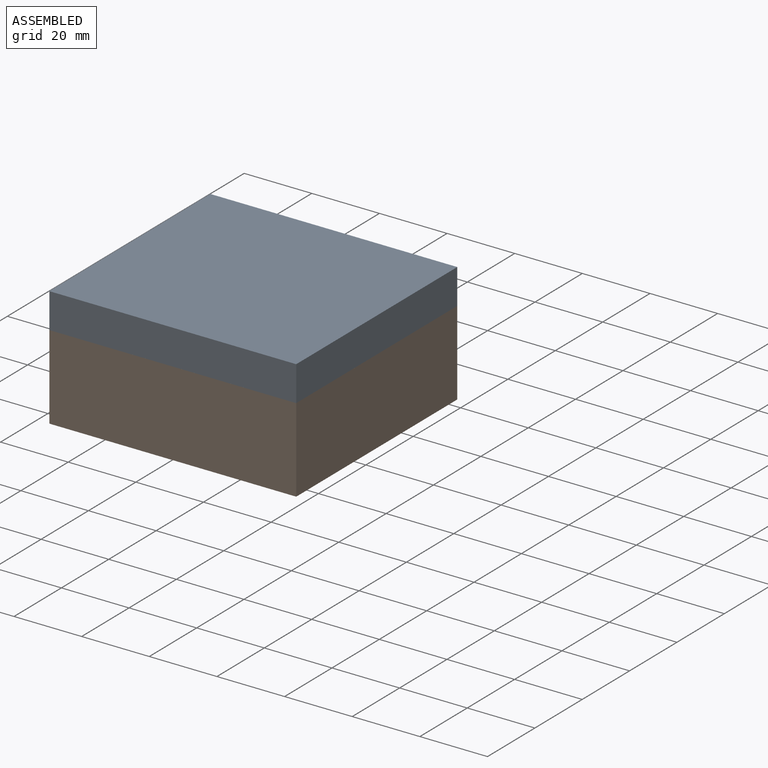
[diagram: assembled view]
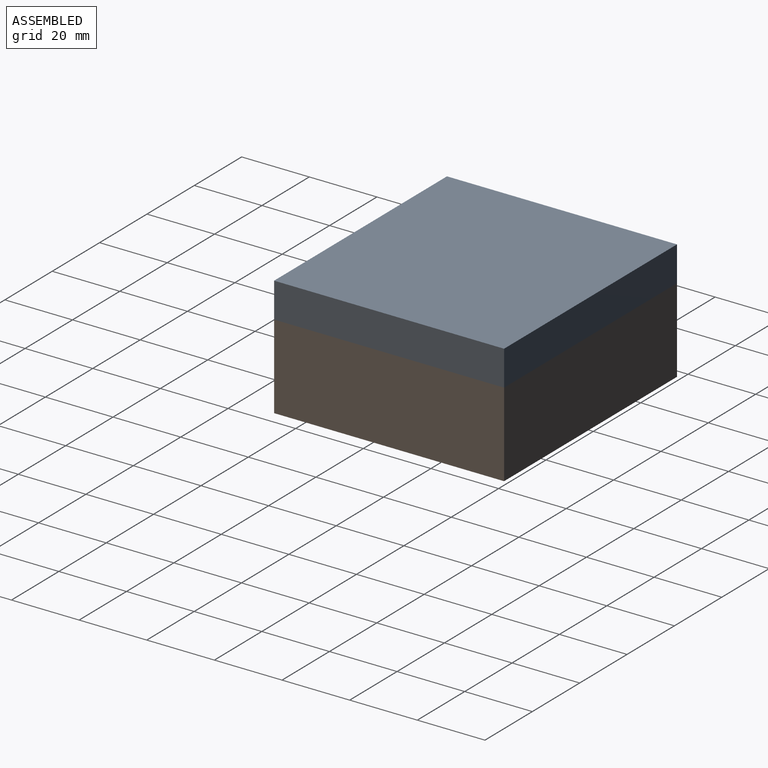
[diagram: assembled view, second angle]
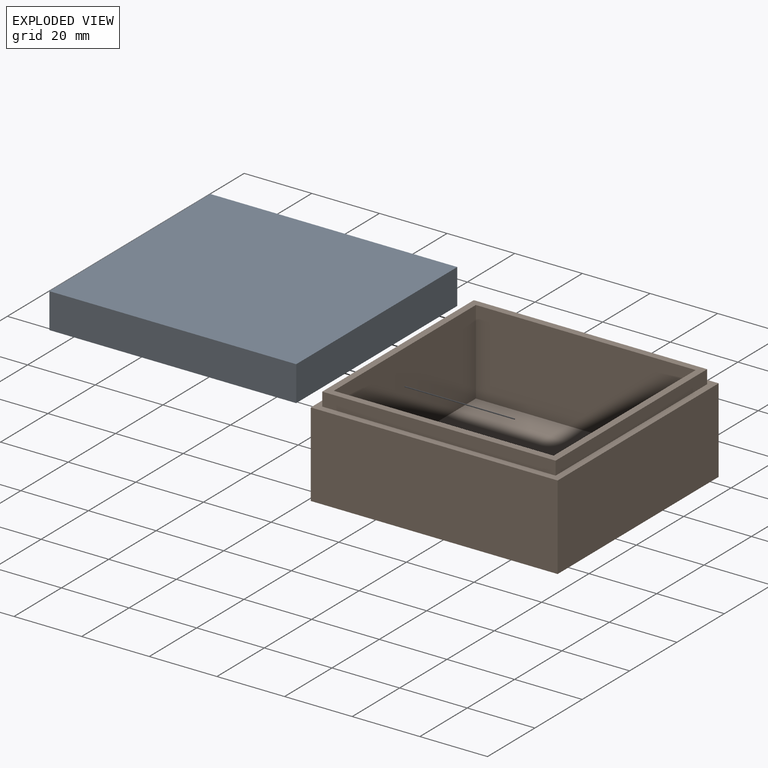
[diagram: exploded view]
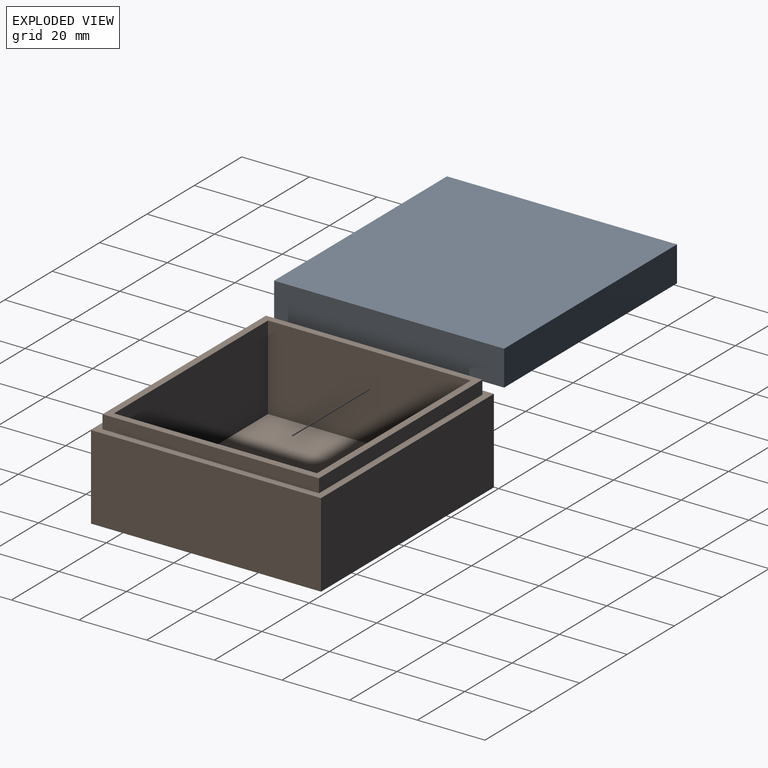
[diagram: exploded view, second angle]
ASSEMBLY  parts=2 mates=3
PART A: 16 faces, bbox 73x68x10.4 mm
  f0: plane 69.8x64.8mm, normal (0,0,-1), area 623mm2, adj f1,f2,f3,f4,f6,f7,f8,f9
  f1: plane 60x2.4mm, normal (1,0,0), area 144mm2, adj f0,f2,f4,f5
  f2: plane 65x2.4mm, normal (0,1,0), area 156mm2, adj f0,f1,f3,f5
  f3: plane 60x2.4mm, normal (-1,0,0), area 144mm2, adj f0,f2,f4,f5
  f4: plane 65x2.4mm, normal (0,-1,0), area 156mm2, adj f0,f1,f3,f5
  f5: plane 65x60mm, normal (0,0,-1), area 3900mm2, adj f1,f2,f3,f4
  f6: plane 64.8x4mm, normal (1,0,0), area 259.2mm2, adj f0,f7,f9,f10
  f7: plane 69.8x4mm, normal (0,1,0), area 279.2mm2, adj f0,f6,f8,f10
  f8: plane 64.8x4mm, normal (-1,0,0), area 259.2mm2, adj f0,f7,f9,f10
  f9: plane 69.8x4mm, normal (0,-1,0), area 279.2mm2, adj f0,f6,f8,f10
  f10: plane 73x68mm, normal (0,0,-1), area 441mm2, adj f6,f7,f8,f9,f12,f13,f14,f15
  f11: plane 73x68mm, normal (0,0,1), area 4964mm2, adj f12,f13,f14,f15
  f12: plane 68x10.4mm, normal (1,0,0), area 707.2mm2, adj f10,f11,f13,f15
  f13: plane 73x10.4mm, normal (0,1,0), area 759.2mm2, adj f10,f11,f12,f14
  f14: plane 68x10.4mm, normal (-1,0,0), area 707.2mm2, adj f10,f11,f13,f15
  f15: plane 73x10.4mm, normal (0,-1,0), area 759.2mm2, adj f10,f11,f12,f14
PART B: 16 faces, bbox 73x68x29 mm
  f0: plane 73x68mm, normal (0,0,1), area 548mm2, adj f1,f2,f3,f4,f6,f7,f8,f9
  f1: plane 68x25mm, normal (-1,0,0), area 1700mm2, adj f0,f2,f4,f5
  f2: plane 73x25mm, normal (0,-1,0), area 1825mm2, adj f0,f1,f3,f5
  f3: plane 68x25mm, normal (1,0,0), area 1700mm2, adj f0,f2,f4,f5
  f4: plane 73x25mm, normal (0,1,0), area 1825mm2, adj f0,f1,f3,f5
  f5: plane 73x68mm, normal (0,0,-1), area 4964mm2, adj f1,f2,f3,f4
  f6: plane 64x4mm, normal (-1,0,0), area 256mm2, adj f0,f7,f9,f10
  f7: plane 69x4mm, normal (0,-1,0), area 276mm2, adj f0,f6,f8,f10
  f8: plane 64x4mm, normal (1,0,0), area 256mm2, adj f0,f7,f9,f10
  f9: plane 69x4mm, normal (0,1,0), area 276mm2, adj f0,f6,f8,f10
  f10: plane 69x64mm, normal (0,0,1), area 516mm2, adj f6,f7,f8,f9,f12,f13,f14,f15
  f11: plane 65x60mm, normal (0,0,1), area 3900mm2, adj f12,f13,f14,f15
  f12: plane 60x25mm, normal (-1,0,0), area 1500mm2, adj f10,f11,f13,f15
  f13: plane 65x25mm, normal (0,-1,0), area 1625mm2, adj f10,f11,f12,f14
  f14: plane 60x25mm, normal (1,0,0), area 1500mm2, adj f10,f11,f13,f15
  f15: plane 65x25mm, normal (0,1,0), area 1625mm2, adj f10,f11,f12,f14
PLACE A t=(-14.42,-7.36,2.23)mm
PLACE B t=(-14.42,-7.36,-29.17)mm
MATE planar A.f12 <-> B.f3  axis (1,0,0) through (58.58,26.64,1.03)mm
MATE planar A.f15 <-> B.f2  axis (0,-1,0) through (22.08,-7.36,1.03)mm
MATE planar A.f10 <-> B.f0  axis (0,0,-1) through (22.08,26.64,-4.17)mm
